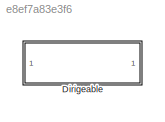
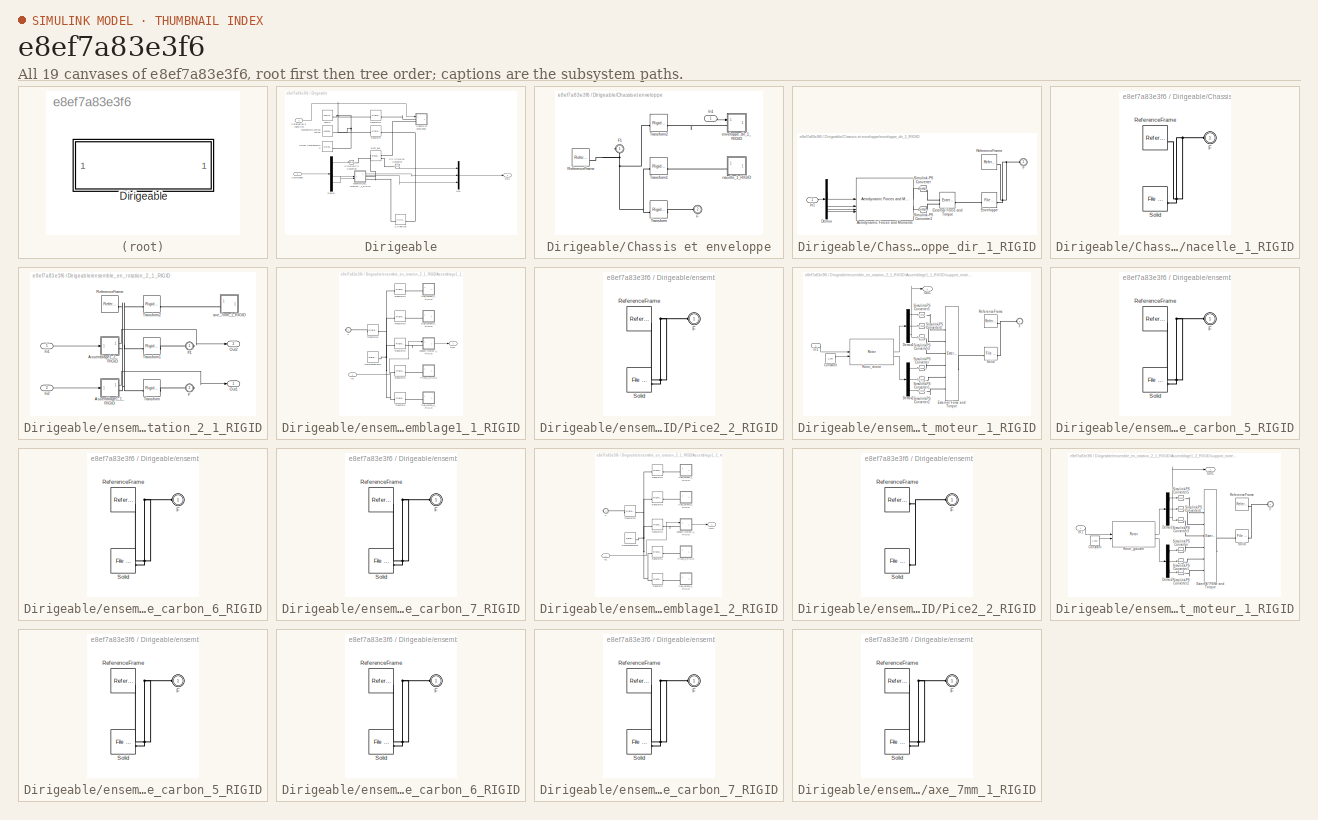
[diagram: thumbnail index - all 19 canvases of the model, root first then tree order]
MODEL slx_e8ef7a83e3f6
KIND model
CONFIG AbsTol = auto
CONFIG EnableMultiTasking = off
CONFIG FixedStep = auto
CONFIG MaxStep = auto
CONFIG MinStep = auto
CONFIG RelTol = 1e-3
CONFIG SampleTimeConstraint = Unconstrained
CONFIG SolverName = VariableStepAuto
CONFIG StartTime = 0.0
CONFIG StopTime = 10.0
WORKSPACE source: external: MATLAB File  (data not in archive)
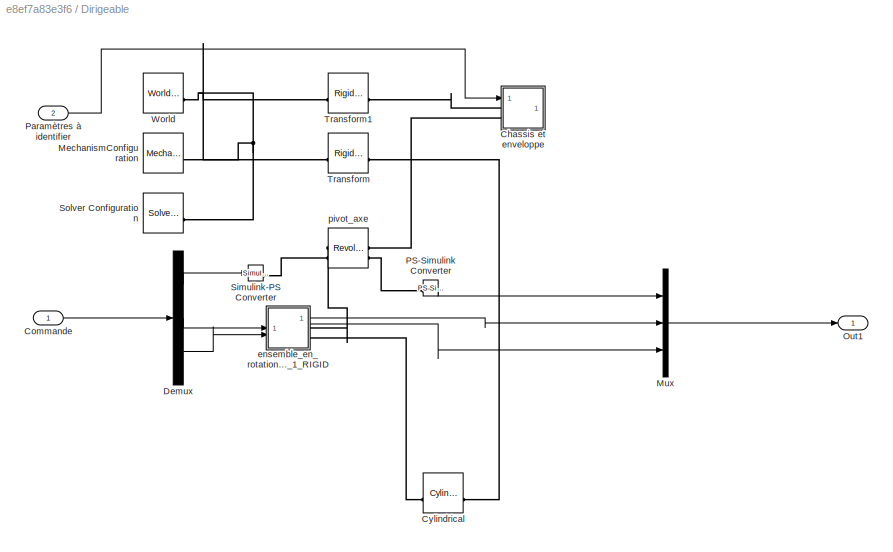
BLOCK [SubSystem] Dirigeable
BLOCK [SubSystem] Dirigeable/Chassis et enveloppe
BLOCK [PMIOPort] Dirigeable/Chassis et enveloppe/F
  Port = 2
  Side = Left
BLOCK [PMIOPort] Dirigeable/Chassis et enveloppe/F1
  Side = Left
BLOCK [Inport] Dirigeable/Chassis et enveloppe/In1
BLOCK [Reference] Dirigeable/Chassis et enveloppe/ReferenceFrame  REF=sm_lib/Frames and
Transforms/Reference
Frame
  SourceBlock = sm_lib/Frames and\nTransforms/Reference\nFrame
  SourceType = Reference\nFrame
BLOCK [Reference] Dirigeable/Chassis et enveloppe/Transform  REF=sm_lib/Frames and
Transforms/Rigid
Transform
  SourceBlock = sm_lib/Frames and\nTransforms/Rigid\nTransform
  SourceType = Rigid\nTransform
BLOCK [Reference] Dirigeable/Chassis et enveloppe/Transform1  REF=sm_lib/Frames and
Transforms/Rigid
Transform
  SourceBlock = sm_lib/Frames and\nTransforms/Rigid\nTransform
  SourceType = Rigid\nTransform
BLOCK [Reference] Dirigeable/Chassis et enveloppe/Transform2  REF=sm_lib/Frames and
Transforms/Rigid
Transform
  SourceBlock = sm_lib/Frames and\nTransforms/Rigid\nTransform
  SourceType = Rigid\nTransform
BLOCK [SubSystem] Dirigeable/Chassis et enveloppe/enveloppe_dir_1_RIGID
BLOCK [Reference] Dirigeable/Chassis et enveloppe/enveloppe_dir_1_RIGID/Aerodynamic Forces and Moments   REF=aerolibadyn/Aerodynamic
Forces and Moments 
  SourceBlock = aerolibadyn/Aerodynamic\nForces and Moments
  SourceType = Aerodynamic Forces and Moments
BLOCK [Demux] Dirigeable/Chassis et enveloppe/enveloppe_dir_1_RIGID/Demux
BLOCK [Reference] Dirigeable/Chassis et enveloppe/enveloppe_dir_1_RIGID/Enveloppe  REF=sm_lib/Body Elements/File Solid
  SourceBlock = sm_lib/Body Elements/File Solid
  SourceType = File Solid
BLOCK [Reference] Dirigeable/Chassis et enveloppe/enveloppe_dir_1_RIGID/External Force and Torque  REF=sm_lib/Forces and
Torques/External Force
and Torque
  SourceBlock = sm_lib/Forces and\nTorques/External Force\nand Torque
  SourceType = External Force\nand Torque
BLOCK [PMIOPort] Dirigeable/Chassis et enveloppe/enveloppe_dir_1_RIGID/F
  Side = Left
BLOCK [Inport] Dirigeable/Chassis et enveloppe/enveloppe_dir_1_RIGID/In1
BLOCK [Reference] Dirigeable/Chassis et enveloppe/enveloppe_dir_1_RIGID/ReferenceFrame  REF=sm_lib/Frames and
Transforms/Reference
Frame
  SourceBlock = sm_lib/Frames and\nTransforms/Reference\nFrame
  SourceType = Reference\nFrame
BLOCK [Reference] Dirigeable/Chassis et enveloppe/enveloppe_dir_1_RIGID/Simulink-PS Converter  REF=nesl_utility/Simulink-PS
Converter
  SourceBlock = nesl_utility/Simulink-PS\nConverter
  SourceType = Simulink-PS\nConverter
BLOCK [Reference] Dirigeable/Chassis et enveloppe/enveloppe_dir_1_RIGID/Simulink-PS Converter1  REF=nesl_utility/Simulink-PS
Converter
  SourceBlock = nesl_utility/Simulink-PS\nConverter
  SourceType = Simulink-PS\nConverter
BLOCK [SubSystem] Dirigeable/Chassis et enveloppe/nacelle_1_RIGID
BLOCK [PMIOPort] Dirigeable/Chassis et enveloppe/nacelle_1_RIGID/F
  Side = Left
BLOCK [Reference] Dirigeable/Chassis et enveloppe/nacelle_1_RIGID/ReferenceFrame  REF=sm_lib/Frames and
Transforms/Reference
Frame
  SourceBlock = sm_lib/Frames and\nTransforms/Reference\nFrame
  SourceType = Reference\nFrame
BLOCK [Reference] Dirigeable/Chassis et enveloppe/nacelle_1_RIGID/Solid  REF=sm_lib/Body Elements/File Solid
  SourceBlock = sm_lib/Body Elements/File Solid
  SourceType = File Solid
BLOCK [Inport] Dirigeable/Commande
BLOCK [Reference] Dirigeable/Cylindrical  REF=sm_lib/Joints/Cylindrical
Joint
  SourceBlock = sm_lib/Joints/Cylindrical\nJoint
  SourceType = Cylindrical\nJoint
BLOCK [Demux] Dirigeable/Demux
  Outputs = 3
BLOCK [Reference] Dirigeable/MechanismConfiguration  REF=sm_lib/Utilities/Mechanism
Configuration
  SourceBlock = sm_lib/Utilities/Mechanism\nConfiguration
  SourceType = Mechanism\nConfiguration
BLOCK [Mux] Dirigeable/Mux
  DisplayOption = bar
  Inputs = 3
BLOCK [Outport] Dirigeable/Out1
BLOCK [Reference] Dirigeable/PS-Simulink Converter  REF=nesl_utility/PS-Simulink
Converter
  SourceBlock = nesl_utility/PS-Simulink\nConverter
  SourceType = PS-Simulink\nConverter
BLOCK [Inport] Dirigeable/Paramètres à identifier
  Port = 2
BLOCK [Reference] Dirigeable/Simulink-PS Converter  REF=nesl_utility/Simulink-PS
Converter
  SourceBlock = nesl_utility/Simulink-PS\nConverter
  SourceType = Simulink-PS\nConverter
BLOCK [Reference] Dirigeable/Solver Configuration  REF=nesl_utility/Solver
Configuration
  SourceBlock = nesl_utility/Solver\nConfiguration
  SourceType = Solver\nConfiguration
BLOCK [Reference] Dirigeable/Transform  REF=sm_lib/Frames and
Transforms/Rigid
Transform
  SourceBlock = sm_lib/Frames and\nTransforms/Rigid\nTransform
  SourceType = Rigid\nTransform
BLOCK [Reference] Dirigeable/Transform1  REF=sm_lib/Frames and
Transforms/Rigid
Transform
  SourceBlock = sm_lib/Frames and\nTransforms/Rigid\nTransform
  SourceType = Rigid\nTransform
BLOCK [Reference] Dirigeable/World  REF=sm_lib/Frames and
Transforms/World Frame
  SourceBlock = sm_lib/Frames and\nTransforms/World Frame
  SourceType = World Frame
BLOCK [SubSystem] Dirigeable/ensemble_en_rotation_2_1_RIGID
BLOCK [SubSystem] Dirigeable/ensemble_en_rotation_2_1_RIGID/Assemblage1_1_RIGID
BLOCK [PMIOPort] Dirigeable/ensemble_en_rotation_2_1_RIGID/Assemblage1_1_RIGID/F
  Side = Right
BLOCK [Inport] Dirigeable/ensemble_en_rotation_2_1_RIGID/Assemblage1_1_RIGID/In1
BLOCK [Outport] Dirigeable/ensemble_en_rotation_2_1_RIGID/Assemblage1_1_RIGID/Out1
BLOCK [SubSystem] Dirigeable/ensemble_en_rotation_2_1_RIGID/Assemblage1_1_RIGID/Pice2_2_RIGID
BLOCK [PMIOPort] Dirigeable/ensemble_en_rotation_2_1_RIGID/Assemblage1_1_RIGID/Pice2_2_RIGID/F
  Side = Left
BLOCK [Reference] Dirigeable/ensemble_en_rotation_2_1_RIGID/Assemblage1_1_RIGID/Pice2_2_RIGID/ReferenceFrame  REF=sm_lib/Frames and
Transforms/Reference
Frame
  SourceBlock = sm_lib/Frames and\nTransforms/Reference\nFrame
  SourceType = Reference\nFrame
BLOCK [Reference] Dirigeable/ensemble_en_rotation_2_1_RIGID/Assemblage1_1_RIGID/Pice2_2_RIGID/Solid  REF=sm_lib/Body Elements/File Solid
  SourceBlock = sm_lib/Body Elements/File Solid
  SourceType = File Solid
BLOCK [Reference] Dirigeable/ensemble_en_rotation_2_1_RIGID/Assemblage1_1_RIGID/ReferenceFrame  REF=sm_lib/Frames and
Transforms/Reference
Frame
  SourceBlock = sm_lib/Frames and\nTransforms/Reference\nFrame
  SourceType = Reference\nFrame
BLOCK [Reference] Dirigeable/ensemble_en_rotation_2_1_RIGID/Assemblage1_1_RIGID/Transform  REF=sm_lib/Frames and
Transforms/Rigid
Transform
  SourceBlock = sm_lib/Frames and\nTransforms/Rigid\nTransform
  SourceType = Rigid\nTransform
BLOCK [Reference] Dirigeable/ensemble_en_rotation_2_1_RIGID/Assemblage1_1_RIGID/Transform1  REF=sm_lib/Frames and
Transforms/Rigid
Transform
  SourceBlock = sm_lib/Frames and\nTransforms/Rigid\nTransform
  SourceType = Rigid\nTransform
BLOCK [Reference] Dirigeable/ensemble_en_rotation_2_1_RIGID/Assemblage1_1_RIGID/Transform2  REF=sm_lib/Frames and
Transforms/Rigid
Transform
  SourceBlock = sm_lib/Frames and\nTransforms/Rigid\nTransform
  SourceType = Rigid\nTransform
BLOCK [Reference] Dirigeable/ensemble_en_rotation_2_1_RIGID/Assemblage1_1_RIGID/Transform3  REF=sm_lib/Frames and
Transforms/Rigid
Transform
  SourceBlock = sm_lib/Frames and\nTransforms/Rigid\nTransform
  SourceType = Rigid\nTransform
BLOCK [Reference] Dirigeable/ensemble_en_rotation_2_1_RIGID/Assemblage1_1_RIGID/Transform4  REF=sm_lib/Frames and
Transforms/Rigid
Transform
  SourceBlock = sm_lib/Frames and\nTransforms/Rigid\nTransform
  SourceType = Rigid\nTransform
BLOCK [Reference] Dirigeable/ensemble_en_rotation_2_1_RIGID/Assemblage1_1_RIGID/Transform5  REF=sm_lib/Frames and
Transforms/Rigid
Transform
  SourceBlock = sm_lib/Frames and\nTransforms/Rigid\nTransform
  SourceType = Rigid\nTransform
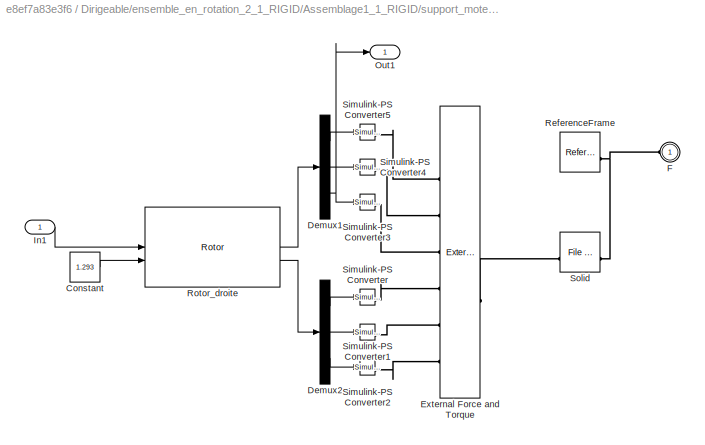
BLOCK [SubSystem] Dirigeable/ensemble_en_rotation_2_1_RIGID/Assemblage1_1_RIGID/support_moteur_1_RIGID
BLOCK [Constant] Dirigeable/ensemble_en_rotation_2_1_RIGID/Assemblage1_1_RIGID/support_moteur_1_RIGID/Constant
  Value = 1.293
BLOCK [Demux] Dirigeable/ensemble_en_rotation_2_1_RIGID/Assemblage1_1_RIGID/support_moteur_1_RIGID/Demux1
  Outputs = 3
BLOCK [Demux] Dirigeable/ensemble_en_rotation_2_1_RIGID/Assemblage1_1_RIGID/support_moteur_1_RIGID/Demux2
  Outputs = 3
BLOCK [Reference] Dirigeable/ensemble_en_rotation_2_1_RIGID/Assemblage1_1_RIGID/support_moteur_1_RIGID/External Force and Torque  REF=sm_lib/Forces and
Torques/External Force
and Torque
  SourceBlock = sm_lib/Forces and\nTorques/External Force\nand Torque
  SourceType = External Force\nand Torque
BLOCK [PMIOPort] Dirigeable/ensemble_en_rotation_2_1_RIGID/Assemblage1_1_RIGID/support_moteur_1_RIGID/F
  Side = Left
BLOCK [Inport] Dirigeable/ensemble_en_rotation_2_1_RIGID/Assemblage1_1_RIGID/support_moteur_1_RIGID/In1
BLOCK [Outport] Dirigeable/ensemble_en_rotation_2_1_RIGID/Assemblage1_1_RIGID/support_moteur_1_RIGID/Out1
BLOCK [Reference] Dirigeable/ensemble_en_rotation_2_1_RIGID/Assemblage1_1_RIGID/support_moteur_1_RIGID/ReferenceFrame  REF=sm_lib/Frames and
Transforms/Reference
Frame
  SourceBlock = sm_lib/Frames and\nTransforms/Reference\nFrame
  SourceType = Reference\nFrame
BLOCK [Reference] Dirigeable/ensemble_en_rotation_2_1_RIGID/Assemblage1_1_RIGID/support_moteur_1_RIGID/Rotor_droite  REF=aerolibpropulsion2/Rotor
  LibrarySourceBlock = aerolibrotor/Rotor
  SourceBlock = aerolibpropulsion2/Rotor
  SourceType = Rotor
BLOCK [Reference] Dirigeable/ensemble_en_rotation_2_1_RIGID/Assemblage1_1_RIGID/support_moteur_1_RIGID/Simulink-PS Converter  REF=nesl_utility/Simulink-PS
Converter
  SourceBlock = nesl_utility/Simulink-PS\nConverter
  SourceType = Simulink-PS\nConverter
BLOCK [Reference] Dirigeable/ensemble_en_rotation_2_1_RIGID/Assemblage1_1_RIGID/support_moteur_1_RIGID/Simulink-PS Converter1  REF=nesl_utility/Simulink-PS
Converter
  SourceBlock = nesl_utility/Simulink-PS\nConverter
  SourceType = Simulink-PS\nConverter
BLOCK [Reference] Dirigeable/ensemble_en_rotation_2_1_RIGID/Assemblage1_1_RIGID/support_moteur_1_RIGID/Simulink-PS Converter2  REF=nesl_utility/Simulink-PS
Converter
  SourceBlock = nesl_utility/Simulink-PS\nConverter
  SourceType = Simulink-PS\nConverter
BLOCK [Reference] Dirigeable/ensemble_en_rotation_2_1_RIGID/Assemblage1_1_RIGID/support_moteur_1_RIGID/Simulink-PS Converter3  REF=nesl_utility/Simulink-PS
Converter
  SourceBlock = nesl_utility/Simulink-PS\nConverter
  SourceType = Simulink-PS\nConverter
BLOCK [Reference] Dirigeable/ensemble_en_rotation_2_1_RIGID/Assemblage1_1_RIGID/support_moteur_1_RIGID/Simulink-PS Converter4  REF=nesl_utility/Simulink-PS
Converter
  SourceBlock = nesl_utility/Simulink-PS\nConverter
  SourceType = Simulink-PS\nConverter
BLOCK [Reference] Dirigeable/ensemble_en_rotation_2_1_RIGID/Assemblage1_1_RIGID/support_moteur_1_RIGID/Simulink-PS Converter5  REF=nesl_utility/Simulink-PS
Converter
  SourceBlock = nesl_utility/Simulink-PS\nConverter
  SourceType = Simulink-PS\nConverter
BLOCK [Reference] Dirigeable/ensemble_en_rotation_2_1_RIGID/Assemblage1_1_RIGID/support_moteur_1_RIGID/Solid  REF=sm_lib/Body Elements/File Solid
  SourceBlock = sm_lib/Body Elements/File Solid
  SourceType = File Solid
BLOCK [SubSystem] Dirigeable/ensemble_en_rotation_2_1_RIGID/Assemblage1_1_RIGID/tige_carbon_5_RIGID
BLOCK [PMIOPort] Dirigeable/ensemble_en_rotation_2_1_RIGID/Assemblage1_1_RIGID/tige_carbon_5_RIGID/F
  Side = Left
BLOCK [Reference] Dirigeable/ensemble_en_rotation_2_1_RIGID/Assemblage1_1_RIGID/tige_carbon_5_RIGID/ReferenceFrame  REF=sm_lib/Frames and
Transforms/Reference
Frame
  SourceBlock = sm_lib/Frames and\nTransforms/Reference\nFrame
  SourceType = Reference\nFrame
BLOCK [Reference] Dirigeable/ensemble_en_rotation_2_1_RIGID/Assemblage1_1_RIGID/tige_carbon_5_RIGID/Solid  REF=sm_lib/Body Elements/File Solid
  SourceBlock = sm_lib/Body Elements/File Solid
  SourceType = File Solid
BLOCK [SubSystem] Dirigeable/ensemble_en_rotation_2_1_RIGID/Assemblage1_1_RIGID/tige_carbon_6_RIGID
BLOCK [PMIOPort] Dirigeable/ensemble_en_rotation_2_1_RIGID/Assemblage1_1_RIGID/tige_carbon_6_RIGID/F
  Side = Left
BLOCK [Reference] Dirigeable/ensemble_en_rotation_2_1_RIGID/Assemblage1_1_RIGID/tige_carbon_6_RIGID/ReferenceFrame  REF=sm_lib/Frames and
Transforms/Reference
Frame
  SourceBlock = sm_lib/Frames and\nTransforms/Reference\nFrame
  SourceType = Reference\nFrame
BLOCK [Reference] Dirigeable/ensemble_en_rotation_2_1_RIGID/Assemblage1_1_RIGID/tige_carbon_6_RIGID/Solid  REF=sm_lib/Body Elements/File Solid
  SourceBlock = sm_lib/Body Elements/File Solid
  SourceType = File Solid
BLOCK [SubSystem] Dirigeable/ensemble_en_rotation_2_1_RIGID/Assemblage1_1_RIGID/tige_carbon_7_RIGID
BLOCK [PMIOPort] Dirigeable/ensemble_en_rotation_2_1_RIGID/Assemblage1_1_RIGID/tige_carbon_7_RIGID/F
  Side = Left
BLOCK [Reference] Dirigeable/ensemble_en_rotation_2_1_RIGID/Assemblage1_1_RIGID/tige_carbon_7_RIGID/ReferenceFrame  REF=sm_lib/Frames and
Transforms/Reference
Frame
  SourceBlock = sm_lib/Frames and\nTransforms/Reference\nFrame
  SourceType = Reference\nFrame
BLOCK [Reference] Dirigeable/ensemble_en_rotation_2_1_RIGID/Assemblage1_1_RIGID/tige_carbon_7_RIGID/Solid  REF=sm_lib/Body Elements/File Solid
  SourceBlock = sm_lib/Body Elements/File Solid
  SourceType = File Solid
BLOCK [SubSystem] Dirigeable/ensemble_en_rotation_2_1_RIGID/Assemblage1_2_RIGID
BLOCK [PMIOPort] Dirigeable/ensemble_en_rotation_2_1_RIGID/Assemblage1_2_RIGID/F
  Side = Right
BLOCK [Inport] Dirigeable/ensemble_en_rotation_2_1_RIGID/Assemblage1_2_RIGID/In1
BLOCK [Outport] Dirigeable/ensemble_en_rotation_2_1_RIGID/Assemblage1_2_RIGID/Out1
BLOCK [SubSystem] Dirigeable/ensemble_en_rotation_2_1_RIGID/Assemblage1_2_RIGID/Pice2_2_RIGID
BLOCK [PMIOPort] Dirigeable/ensemble_en_rotation_2_1_RIGID/Assemblage1_2_RIGID/Pice2_2_RIGID/F
  Side = Left
BLOCK [Reference] Dirigeable/ensemble_en_rotation_2_1_RIGID/Assemblage1_2_RIGID/Pice2_2_RIGID/ReferenceFrame  REF=sm_lib/Frames and
Transforms/Reference
Frame
  SourceBlock = sm_lib/Frames and\nTransforms/Reference\nFrame
  SourceType = Reference\nFrame
BLOCK [Reference] Dirigeable/ensemble_en_rotation_2_1_RIGID/Assemblage1_2_RIGID/Pice2_2_RIGID/Solid  REF=sm_lib/Body Elements/File Solid
  SourceBlock = sm_lib/Body Elements/File Solid
  SourceType = File Solid
BLOCK [Reference] Dirigeable/ensemble_en_rotation_2_1_RIGID/Assemblage1_2_RIGID/ReferenceFrame  REF=sm_lib/Frames and
Transforms/Reference
Frame
  SourceBlock = sm_lib/Frames and\nTransforms/Reference\nFrame
  SourceType = Reference\nFrame
BLOCK [Reference] Dirigeable/ensemble_en_rotation_2_1_RIGID/Assemblage1_2_RIGID/Transform  REF=sm_lib/Frames and
Transforms/Rigid
Transform
  SourceBlock = sm_lib/Frames and\nTransforms/Rigid\nTransform
  SourceType = Rigid\nTransform
BLOCK [Reference] Dirigeable/ensemble_en_rotation_2_1_RIGID/Assemblage1_2_RIGID/Transform1  REF=sm_lib/Frames and
Transforms/Rigid
Transform
  SourceBlock = sm_lib/Frames and\nTransforms/Rigid\nTransform
  SourceType = Rigid\nTransform
BLOCK [Reference] Dirigeable/ensemble_en_rotation_2_1_RIGID/Assemblage1_2_RIGID/Transform2  REF=sm_lib/Frames and
Transforms/Rigid
Transform
  SourceBlock = sm_lib/Frames and\nTransforms/Rigid\nTransform
  SourceType = Rigid\nTransform
BLOCK [Reference] Dirigeable/ensemble_en_rotation_2_1_RIGID/Assemblage1_2_RIGID/Transform3  REF=sm_lib/Frames and
Transforms/Rigid
Transform
  SourceBlock = sm_lib/Frames and\nTransforms/Rigid\nTransform
  SourceType = Rigid\nTransform
BLOCK [Reference] Dirigeable/ensemble_en_rotation_2_1_RIGID/Assemblage1_2_RIGID/Transform4  REF=sm_lib/Frames and
Transforms/Rigid
Transform
  SourceBlock = sm_lib/Frames and\nTransforms/Rigid\nTransform
  SourceType = Rigid\nTransform
BLOCK [Reference] Dirigeable/ensemble_en_rotation_2_1_RIGID/Assemblage1_2_RIGID/Transform5  REF=sm_lib/Frames and
Transforms/Rigid
Transform
  SourceBlock = sm_lib/Frames and\nTransforms/Rigid\nTransform
  SourceType = Rigid\nTransform
BLOCK [SubSystem] Dirigeable/ensemble_en_rotation_2_1_RIGID/Assemblage1_2_RIGID/support_moteur_1_RIGID
BLOCK [Constant] Dirigeable/ensemble_en_rotation_2_1_RIGID/Assemblage1_2_RIGID/support_moteur_1_RIGID/Constant
  Value = 1.293
BLOCK [Demux] Dirigeable/ensemble_en_rotation_2_1_RIGID/Assemblage1_2_RIGID/support_moteur_1_RIGID/Demux1
  Outputs = 3
BLOCK [Demux] Dirigeable/ensemble_en_rotation_2_1_RIGID/Assemblage1_2_RIGID/support_moteur_1_RIGID/Demux2
  Outputs = 3
BLOCK [Reference] Dirigeable/ensemble_en_rotation_2_1_RIGID/Assemblage1_2_RIGID/support_moteur_1_RIGID/External Force and Torque  REF=sm_lib/Forces and
Torques/External Force
and Torque
  SourceBlock = sm_lib/Forces and\nTorques/External Force\nand Torque
  SourceType = External Force\nand Torque
BLOCK [PMIOPort] Dirigeable/ensemble_en_rotation_2_1_RIGID/Assemblage1_2_RIGID/support_moteur_1_RIGID/F
  Side = Left
BLOCK [Inport] Dirigeable/ensemble_en_rotation_2_1_RIGID/Assemblage1_2_RIGID/support_moteur_1_RIGID/In1
BLOCK [Outport] Dirigeable/ensemble_en_rotation_2_1_RIGID/Assemblage1_2_RIGID/support_moteur_1_RIGID/Out1
BLOCK [Reference] Dirigeable/ensemble_en_rotation_2_1_RIGID/Assemblage1_2_RIGID/support_moteur_1_RIGID/ReferenceFrame  REF=sm_lib/Frames and
Transforms/Reference
Frame
  SourceBlock = sm_lib/Frames and\nTransforms/Reference\nFrame
  SourceType = Reference\nFrame
BLOCK [Reference] Dirigeable/ensemble_en_rotation_2_1_RIGID/Assemblage1_2_RIGID/support_moteur_1_RIGID/Rotor_gauche  REF=aerolibpropulsion2/Rotor
  LibrarySourceBlock = aerolibrotor/Rotor
  SourceBlock = aerolibpropulsion2/Rotor
  SourceType = Rotor
BLOCK [Reference] Dirigeable/ensemble_en_rotation_2_1_RIGID/Assemblage1_2_RIGID/support_moteur_1_RIGID/Simulink-PS Converter  REF=nesl_utility/Simulink-PS
Converter
  SourceBlock = nesl_utility/Simulink-PS\nConverter
  SourceType = Simulink-PS\nConverter
BLOCK [Reference] Dirigeable/ensemble_en_rotation_2_1_RIGID/Assemblage1_2_RIGID/support_moteur_1_RIGID/Simulink-PS Converter1  REF=nesl_utility/Simulink-PS
Converter
  SourceBlock = nesl_utility/Simulink-PS\nConverter
  SourceType = Simulink-PS\nConverter
BLOCK [Reference] Dirigeable/ensemble_en_rotation_2_1_RIGID/Assemblage1_2_RIGID/support_moteur_1_RIGID/Simulink-PS Converter2  REF=nesl_utility/Simulink-PS
Converter
  SourceBlock = nesl_utility/Simulink-PS\nConverter
  SourceType = Simulink-PS\nConverter
BLOCK [Reference] Dirigeable/ensemble_en_rotation_2_1_RIGID/Assemblage1_2_RIGID/support_moteur_1_RIGID/Simulink-PS Converter3  REF=nesl_utility/Simulink-PS
Converter
  SourceBlock = nesl_utility/Simulink-PS\nConverter
  SourceType = Simulink-PS\nConverter
BLOCK [Reference] Dirigeable/ensemble_en_rotation_2_1_RIGID/Assemblage1_2_RIGID/support_moteur_1_RIGID/Simulink-PS Converter4  REF=nesl_utility/Simulink-PS
Converter
  SourceBlock = nesl_utility/Simulink-PS\nConverter
  SourceType = Simulink-PS\nConverter
BLOCK [Reference] Dirigeable/ensemble_en_rotation_2_1_RIGID/Assemblage1_2_RIGID/support_moteur_1_RIGID/Simulink-PS Converter5  REF=nesl_utility/Simulink-PS
Converter
  SourceBlock = nesl_utility/Simulink-PS\nConverter
  SourceType = Simulink-PS\nConverter
BLOCK [Reference] Dirigeable/ensemble_en_rotation_2_1_RIGID/Assemblage1_2_RIGID/support_moteur_1_RIGID/Solid  REF=sm_lib/Body Elements/File Solid
  SourceBlock = sm_lib/Body Elements/File Solid
  SourceType = File Solid
BLOCK [SubSystem] Dirigeable/ensemble_en_rotation_2_1_RIGID/Assemblage1_2_RIGID/tige_carbon_5_RIGID
BLOCK [PMIOPort] Dirigeable/ensemble_en_rotation_2_1_RIGID/Assemblage1_2_RIGID/tige_carbon_5_RIGID/F
  Side = Left
BLOCK [Reference] Dirigeable/ensemble_en_rotation_2_1_RIGID/Assemblage1_2_RIGID/tige_carbon_5_RIGID/ReferenceFrame  REF=sm_lib/Frames and
Transforms/Reference
Frame
  SourceBlock = sm_lib/Frames and\nTransforms/Reference\nFrame
  SourceType = Reference\nFrame
BLOCK [Reference] Dirigeable/ensemble_en_rotation_2_1_RIGID/Assemblage1_2_RIGID/tige_carbon_5_RIGID/Solid  REF=sm_lib/Body Elements/File Solid
  SourceBlock = sm_lib/Body Elements/File Solid
  SourceType = File Solid
BLOCK [SubSystem] Dirigeable/ensemble_en_rotation_2_1_RIGID/Assemblage1_2_RIGID/tige_carbon_6_RIGID
BLOCK [PMIOPort] Dirigeable/ensemble_en_rotation_2_1_RIGID/Assemblage1_2_RIGID/tige_carbon_6_RIGID/F
  Side = Left
BLOCK [Reference] Dirigeable/ensemble_en_rotation_2_1_RIGID/Assemblage1_2_RIGID/tige_carbon_6_RIGID/ReferenceFrame  REF=sm_lib/Frames and
Transforms/Reference
Frame
  SourceBlock = sm_lib/Frames and\nTransforms/Reference\nFrame
  SourceType = Reference\nFrame
BLOCK [Reference] Dirigeable/ensemble_en_rotation_2_1_RIGID/Assemblage1_2_RIGID/tige_carbon_6_RIGID/Solid  REF=sm_lib/Body Elements/File Solid
  SourceBlock = sm_lib/Body Elements/File Solid
  SourceType = File Solid
BLOCK [SubSystem] Dirigeable/ensemble_en_rotation_2_1_RIGID/Assemblage1_2_RIGID/tige_carbon_7_RIGID
BLOCK [PMIOPort] Dirigeable/ensemble_en_rotation_2_1_RIGID/Assemblage1_2_RIGID/tige_carbon_7_RIGID/F
  Side = Left
BLOCK [Reference] Dirigeable/ensemble_en_rotation_2_1_RIGID/Assemblage1_2_RIGID/tige_carbon_7_RIGID/ReferenceFrame  REF=sm_lib/Frames and
Transforms/Reference
Frame
  SourceBlock = sm_lib/Frames and\nTransforms/Reference\nFrame
  SourceType = Reference\nFrame
BLOCK [Reference] Dirigeable/ensemble_en_rotation_2_1_RIGID/Assemblage1_2_RIGID/tige_carbon_7_RIGID/Solid  REF=sm_lib/Body Elements/File Solid
  SourceBlock = sm_lib/Body Elements/File Solid
  SourceType = File Solid
BLOCK [PMIOPort] Dirigeable/ensemble_en_rotation_2_1_RIGID/F
  Port = 2
  Side = Right
BLOCK [PMIOPort] Dirigeable/ensemble_en_rotation_2_1_RIGID/F1
  Side = Right
BLOCK [Inport] Dirigeable/ensemble_en_rotation_2_1_RIGID/In1
BLOCK [Inport] Dirigeable/ensemble_en_rotation_2_1_RIGID/In2
  Port = 2
BLOCK [Outport] Dirigeable/ensemble_en_rotation_2_1_RIGID/Out1
BLOCK [Outport] Dirigeable/ensemble_en_rotation_2_1_RIGID/Out2
  Port = 2
BLOCK [Reference] Dirigeable/ensemble_en_rotation_2_1_RIGID/ReferenceFrame  REF=sm_lib/Frames and
Transforms/Reference
Frame
  SourceBlock = sm_lib/Frames and\nTransforms/Reference\nFrame
  SourceType = Reference\nFrame
BLOCK [Reference] Dirigeable/ensemble_en_rotation_2_1_RIGID/Transform  REF=sm_lib/Frames and
Transforms/Rigid
Transform
  SourceBlock = sm_lib/Frames and\nTransforms/Rigid\nTransform
  SourceType = Rigid\nTransform
BLOCK [Reference] Dirigeable/ensemble_en_rotation_2_1_RIGID/Transform1  REF=sm_lib/Frames and
Transforms/Rigid
Transform
  SourceBlock = sm_lib/Frames and\nTransforms/Rigid\nTransform
  SourceType = Rigid\nTransform
BLOCK [Reference] Dirigeable/ensemble_en_rotation_2_1_RIGID/Transform2  REF=sm_lib/Frames and
Transforms/Rigid
Transform
  SourceBlock = sm_lib/Frames and\nTransforms/Rigid\nTransform
  SourceType = Rigid\nTransform
BLOCK [SubSystem] Dirigeable/ensemble_en_rotation_2_1_RIGID/axe_7mm_1_RIGID
BLOCK [PMIOPort] Dirigeable/ensemble_en_rotation_2_1_RIGID/axe_7mm_1_RIGID/F
  Side = Left
BLOCK [Reference] Dirigeable/ensemble_en_rotation_2_1_RIGID/axe_7mm_1_RIGID/ReferenceFrame  REF=sm_lib/Frames and
Transforms/Reference
Frame
  SourceBlock = sm_lib/Frames and\nTransforms/Reference\nFrame
  SourceType = Reference\nFrame
BLOCK [Reference] Dirigeable/ensemble_en_rotation_2_1_RIGID/axe_7mm_1_RIGID/Solid  REF=sm_lib/Body Elements/File Solid
  SourceBlock = sm_lib/Body Elements/File Solid
  SourceType = File Solid
BLOCK [Reference] Dirigeable/pivot_axe  REF=sm_lib/Joints/Revolute Joint
  SourceBlock = sm_lib/Joints/Revolute Joint
  SourceType = Revolute Joint
LINE Dirigeable/Chassis et enveloppe/In1:1 -> Dirigeable/Chassis et enveloppe/enveloppe_dir_1_RIGID:1
LINE Dirigeable/Chassis et enveloppe/enveloppe_dir_1_RIGID/Aerodynamic Forces and Moments :1 -> Dirigeable/Chassis et enveloppe/enveloppe_dir_1_RIGID/Simulink-PS Converter:1
LINE Dirigeable/Chassis et enveloppe/enveloppe_dir_1_RIGID/Aerodynamic Forces and Moments :2 -> Dirigeable/Chassis et enveloppe/enveloppe_dir_1_RIGID/Simulink-PS Converter1:1
LINE Dirigeable/Chassis et enveloppe/enveloppe_dir_1_RIGID/Demux:1 -> Dirigeable/Chassis et enveloppe/enveloppe_dir_1_RIGID/Aerodynamic Forces and Moments :1
LINE Dirigeable/Chassis et enveloppe/enveloppe_dir_1_RIGID/Demux:2 -> Dirigeable/Chassis et enveloppe/enveloppe_dir_1_RIGID/Aerodynamic Forces and Moments :2
LINE Dirigeable/Chassis et enveloppe/enveloppe_dir_1_RIGID/Demux:3 -> Dirigeable/Chassis et enveloppe/enveloppe_dir_1_RIGID/Aerodynamic Forces and Moments :3
LINE Dirigeable/Chassis et enveloppe/enveloppe_dir_1_RIGID/Demux:4 -> Dirigeable/Chassis et enveloppe/enveloppe_dir_1_RIGID/Aerodynamic Forces and Moments :4
LINE Dirigeable/Chassis et enveloppe/enveloppe_dir_1_RIGID/In1:1 -> Dirigeable/Chassis et enveloppe/enveloppe_dir_1_RIGID/Demux:1
LINE Dirigeable/Commande:1 -> Dirigeable/Demux:1
LINE Dirigeable/Demux:1 -> Dirigeable/Simulink-PS Converter:1
LINE Dirigeable/Demux:2 -> Dirigeable/ensemble_en_rotation_2_1_RIGID:1
LINE Dirigeable/Demux:3 -> Dirigeable/ensemble_en_rotation_2_1_RIGID:2
LINE Dirigeable/Mux:1 -> Dirigeable/Out1:1
LINE Dirigeable/PS-Simulink Converter:1 -> Dirigeable/Mux:1
LINE Dirigeable/Paramètres à identifier:1 -> Dirigeable/Chassis et enveloppe:1
LINE Dirigeable/ensemble_en_rotation_2_1_RIGID/Assemblage1_1_RIGID/In1:1 -> Dirigeable/ensemble_en_rotation_2_1_RIGID/Assemblage1_1_RIGID/support_moteur_1_RIGID:1
LINE Dirigeable/ensemble_en_rotation_2_1_RIGID/Assemblage1_1_RIGID/support_moteur_1_RIGID/Constant:1 -> Dirigeable/ensemble_en_rotation_2_1_RIGID/Assemblage1_1_RIGID/support_moteur_1_RIGID/Rotor_droite:2
LINE Dirigeable/ensemble_en_rotation_2_1_RIGID/Assemblage1_1_RIGID/support_moteur_1_RIGID/Demux1:1 -> Dirigeable/ensemble_en_rotation_2_1_RIGID/Assemblage1_1_RIGID/support_moteur_1_RIGID/Simulink-PS Converter5:1
LINE Dirigeable/ensemble_en_rotation_2_1_RIGID/Assemblage1_1_RIGID/support_moteur_1_RIGID/Demux1:2 -> Dirigeable/ensemble_en_rotation_2_1_RIGID/Assemblage1_1_RIGID/support_moteur_1_RIGID/Simulink-PS Converter4:1
NET Dirigeable/ensemble_en_rotation_2_1_RIGID/Assemblage1_1_RIGID/support_moteur_1_RIGID/Demux1:3 -> Dirigeable/ensemble_en_rotation_2_1_RIGID/Assemblage1_1_RIGID/support_moteur_1_RIGID/Out1:1, Dirigeable/ensemble_en_rotation_2_1_RIGID/Assemblage1_1_RIGID/support_moteur_1_RIGID/Simulink-PS Converter3:1
LINE Dirigeable/ensemble_en_rotation_2_1_RIGID/Assemblage1_1_RIGID/support_moteur_1_RIGID/Demux2:1 -> Dirigeable/ensemble_en_rotation_2_1_RIGID/Assemblage1_1_RIGID/support_moteur_1_RIGID/Simulink-PS Converter:1
LINE Dirigeable/ensemble_en_rotation_2_1_RIGID/Assemblage1_1_RIGID/support_moteur_1_RIGID/Demux2:2 -> Dirigeable/ensemble_en_rotation_2_1_RIGID/Assemblage1_1_RIGID/support_moteur_1_RIGID/Simulink-PS Converter1:1
LINE Dirigeable/ensemble_en_rotation_2_1_RIGID/Assemblage1_1_RIGID/support_moteur_1_RIGID/Demux2:3 -> Dirigeable/ensemble_en_rotation_2_1_RIGID/Assemblage1_1_RIGID/support_moteur_1_RIGID/Simulink-PS Converter2:1
LINE Dirigeable/ensemble_en_rotation_2_1_RIGID/Assemblage1_1_RIGID/support_moteur_1_RIGID/In1:1 -> Dirigeable/ensemble_en_rotation_2_1_RIGID/Assemblage1_1_RIGID/support_moteur_1_RIGID/Rotor_droite:1
LINE Dirigeable/ensemble_en_rotation_2_1_RIGID/Assemblage1_1_RIGID/support_moteur_1_RIGID/Rotor_droite:1 -> Dirigeable/ensemble_en_rotation_2_1_RIGID/Assemblage1_1_RIGID/support_moteur_1_RIGID/Demux1:1
LINE Dirigeable/ensemble_en_rotation_2_1_RIGID/Assemblage1_1_RIGID/support_moteur_1_RIGID/Rotor_droite:2 -> Dirigeable/ensemble_en_rotation_2_1_RIGID/Assemblage1_1_RIGID/support_moteur_1_RIGID/Demux2:1
LINE Dirigeable/ensemble_en_rotation_2_1_RIGID/Assemblage1_1_RIGID/support_moteur_1_RIGID:1 -> Dirigeable/ensemble_en_rotation_2_1_RIGID/Assemblage1_1_RIGID/Out1:1
LINE Dirigeable/ensemble_en_rotation_2_1_RIGID/Assemblage1_1_RIGID:1 -> Dirigeable/ensemble_en_rotation_2_1_RIGID/Out1:1
LINE Dirigeable/ensemble_en_rotation_2_1_RIGID/Assemblage1_2_RIGID/In1:1 -> Dirigeable/ensemble_en_rotation_2_1_RIGID/Assemblage1_2_RIGID/support_moteur_1_RIGID:1
LINE Dirigeable/ensemble_en_rotation_2_1_RIGID/Assemblage1_2_RIGID/support_moteur_1_RIGID/Constant:1 -> Dirigeable/ensemble_en_rotation_2_1_RIGID/Assemblage1_2_RIGID/support_moteur_1_RIGID/Rotor_gauche:2
LINE Dirigeable/ensemble_en_rotation_2_1_RIGID/Assemblage1_2_RIGID/support_moteur_1_RIGID/Demux1:1 -> Dirigeable/ensemble_en_rotation_2_1_RIGID/Assemblage1_2_RIGID/support_moteur_1_RIGID/Simulink-PS Converter5:1
LINE Dirigeable/ensemble_en_rotation_2_1_RIGID/Assemblage1_2_RIGID/support_moteur_1_RIGID/Demux1:2 -> Dirigeable/ensemble_en_rotation_2_1_RIGID/Assemblage1_2_RIGID/support_moteur_1_RIGID/Simulink-PS Converter4:1
NET Dirigeable/ensemble_en_rotation_2_1_RIGID/Assemblage1_2_RIGID/support_moteur_1_RIGID/Demux1:3 -> Dirigeable/ensemble_en_rotation_2_1_RIGID/Assemblage1_2_RIGID/support_moteur_1_RIGID/Out1:1, Dirigeable/ensemble_en_rotation_2_1_RIGID/Assemblage1_2_RIGID/support_moteur_1_RIGID/Simulink-PS Converter3:1
LINE Dirigeable/ensemble_en_rotation_2_1_RIGID/Assemblage1_2_RIGID/support_moteur_1_RIGID/Demux2:1 -> Dirigeable/ensemble_en_rotation_2_1_RIGID/Assemblage1_2_RIGID/support_moteur_1_RIGID/Simulink-PS Converter:1
LINE Dirigeable/ensemble_en_rotation_2_1_RIGID/Assemblage1_2_RIGID/support_moteur_1_RIGID/Demux2:2 -> Dirigeable/ensemble_en_rotation_2_1_RIGID/Assemblage1_2_RIGID/support_moteur_1_RIGID/Simulink-PS Converter1:1
LINE Dirigeable/ensemble_en_rotation_2_1_RIGID/Assemblage1_2_RIGID/support_moteur_1_RIGID/Demux2:3 -> Dirigeable/ensemble_en_rotation_2_1_RIGID/Assemblage1_2_RIGID/support_moteur_1_RIGID/Simulink-PS Converter2:1
LINE Dirigeable/ensemble_en_rotation_2_1_RIGID/Assemblage1_2_RIGID/support_moteur_1_RIGID/In1:1 -> Dirigeable/ensemble_en_rotation_2_1_RIGID/Assemblage1_2_RIGID/support_moteur_1_RIGID/Rotor_gauche:1
LINE Dirigeable/ensemble_en_rotation_2_1_RIGID/Assemblage1_2_RIGID/support_moteur_1_RIGID/Rotor_gauche:1 -> Dirigeable/ensemble_en_rotation_2_1_RIGID/Assemblage1_2_RIGID/support_moteur_1_RIGID/Demux1:1
LINE Dirigeable/ensemble_en_rotation_2_1_RIGID/Assemblage1_2_RIGID/support_moteur_1_RIGID/Rotor_gauche:2 -> Dirigeable/ensemble_en_rotation_2_1_RIGID/Assemblage1_2_RIGID/support_moteur_1_RIGID/Demux2:1
LINE Dirigeable/ensemble_en_rotation_2_1_RIGID/Assemblage1_2_RIGID/support_moteur_1_RIGID:1 -> Dirigeable/ensemble_en_rotation_2_1_RIGID/Assemblage1_2_RIGID/Out1:1
LINE Dirigeable/ensemble_en_rotation_2_1_RIGID/Assemblage1_2_RIGID:1 -> Dirigeable/ensemble_en_rotation_2_1_RIGID/Out2:1
LINE Dirigeable/ensemble_en_rotation_2_1_RIGID/In1:1 -> Dirigeable/ensemble_en_rotation_2_1_RIGID/Assemblage1_2_RIGID:1
LINE Dirigeable/ensemble_en_rotation_2_1_RIGID/In2:1 -> Dirigeable/ensemble_en_rotation_2_1_RIGID/Assemblage1_1_RIGID:1
LINE Dirigeable/ensemble_en_rotation_2_1_RIGID:1 -> Dirigeable/Mux:2
LINE Dirigeable/ensemble_en_rotation_2_1_RIGID:2 -> Dirigeable/Mux:3
PNET net1: Dirigeable/Chassis et enveloppe/F1:RConn1 -- Dirigeable/Chassis et enveloppe/ReferenceFrame:RConn1 -- Dirigeable/Chassis et enveloppe/Transform1:LConn1 -- Dirigeable/Chassis et enveloppe/Transform2:LConn1 -- Dirigeable/Chassis et enveloppe/Transform:LConn1
PLINE Dirigeable/Chassis et enveloppe/F:RConn1 -- Dirigeable/Chassis et enveloppe/Transform:RConn1
PLINE Dirigeable/Chassis et enveloppe/Transform1:RConn1 -- Dirigeable/Chassis et enveloppe/nacelle_1_RIGID:LConn1
PLINE Dirigeable/Chassis et enveloppe/Transform2:RConn1 -- Dirigeable/Chassis et enveloppe/enveloppe_dir_1_RIGID:LConn1
PLINE Dirigeable/Chassis et enveloppe/enveloppe_dir_1_RIGID/Enveloppe:LConn1 -- Dirigeable/Chassis et enveloppe/enveloppe_dir_1_RIGID/External Force and Torque:RConn1
PNET net2: Dirigeable/Chassis et enveloppe/enveloppe_dir_1_RIGID/Enveloppe:RConn1 -- Dirigeable/Chassis et enveloppe/enveloppe_dir_1_RIGID/F:RConn1 -- Dirigeable/Chassis et enveloppe/enveloppe_dir_1_RIGID/ReferenceFrame:RConn1
PLINE Dirigeable/Chassis et enveloppe/enveloppe_dir_1_RIGID/External Force and Torque:LConn1 -- Dirigeable/Chassis et enveloppe/enveloppe_dir_1_RIGID/Simulink-PS Converter:RConn1
PLINE Dirigeable/Chassis et enveloppe/enveloppe_dir_1_RIGID/External Force and Torque:LConn2 -- Dirigeable/Chassis et enveloppe/enveloppe_dir_1_RIGID/Simulink-PS Converter1:RConn1
PNET net3: Dirigeable/Chassis et enveloppe/nacelle_1_RIGID/F:RConn1 -- Dirigeable/Chassis et enveloppe/nacelle_1_RIGID/ReferenceFrame:RConn1 -- Dirigeable/Chassis et enveloppe/nacelle_1_RIGID/Solid:RConn1
PLINE Dirigeable/Chassis et enveloppe:LConn1 -- Dirigeable/Transform1:RConn1
PLINE Dirigeable/Chassis et enveloppe:LConn2 -- Dirigeable/pivot_axe:RConn1
PLINE Dirigeable/Cylindrical:LConn1 -- Dirigeable/ensemble_en_rotation_2_1_RIGID:RConn2
PLINE Dirigeable/Cylindrical:RConn1 -- Dirigeable/Transform:RConn1
PNET net4: Dirigeable/MechanismConfiguration:RConn1 -- Dirigeable/Solver Configuration:RConn1 -- Dirigeable/Transform1:LConn1 -- Dirigeable/Transform:LConn1 -- Dirigeable/World:RConn1
PLINE Dirigeable/PS-Simulink Converter:LConn1 -- Dirigeable/pivot_axe:RConn2
PLINE Dirigeable/Simulink-PS Converter:RConn1 -- Dirigeable/pivot_axe:LConn2
PLINE Dirigeable/ensemble_en_rotation_2_1_RIGID/Assemblage1_1_RIGID/F:RConn1 -- Dirigeable/ensemble_en_rotation_2_1_RIGID/Assemblage1_1_RIGID/Transform5:LConn1
PNET net5: Dirigeable/ensemble_en_rotation_2_1_RIGID/Assemblage1_1_RIGID/Pice2_2_RIGID/F:RConn1 -- Dirigeable/ensemble_en_rotation_2_1_RIGID/Assemblage1_1_RIGID/Pice2_2_RIGID/ReferenceFrame:RConn1 -- Dirigeable/ensemble_en_rotation_2_1_RIGID/Assemblage1_1_RIGID/Pice2_2_RIGID/Solid:RConn1
PLINE Dirigeable/ensemble_en_rotation_2_1_RIGID/Assemblage1_1_RIGID/Pice2_2_RIGID:LConn1 -- Dirigeable/ensemble_en_rotation_2_1_RIGID/Assemblage1_1_RIGID/Transform1:RConn1
PNET net6: Dirigeable/ensemble_en_rotation_2_1_RIGID/Assemblage1_1_RIGID/ReferenceFrame:RConn1 -- Dirigeable/ensemble_en_rotation_2_1_RIGID/Assemblage1_1_RIGID/Transform1:LConn1 -- Dirigeable/ensemble_en_rotation_2_1_RIGID/Assemblage1_1_RIGID/Transform2:LConn1 -- Dirigeable/ensemble_en_rotation_2_1_RIGID/Assemblage1_1_RIGID/Transform3:LConn1 -- Dirigeable/ensemble_en_rotation_2_1_RIGID/Assemblage1_1_RIGID/Transform4:LConn1 -- Dirigeable/ensemble_en_rotation_2_1_RIGID/Assemblage1_1_RIGID/Transform5:RConn1 -- Dirigeable/ensemble_en_rotation_2_1_RIGID/Assemblage1_1_RIGID/Transform:LConn1
PLINE Dirigeable/ensemble_en_rotation_2_1_RIGID/Assemblage1_1_RIGID/Transform2:RConn1 -- Dirigeable/ensemble_en_rotation_2_1_RIGID/Assemblage1_1_RIGID/support_moteur_1_RIGID:LConn1
PLINE Dirigeable/ensemble_en_rotation_2_1_RIGID/Assemblage1_1_RIGID/Transform3:RConn1 -- Dirigeable/ensemble_en_rotation_2_1_RIGID/Assemblage1_1_RIGID/tige_carbon_6_RIGID:LConn1
PLINE Dirigeable/ensemble_en_rotation_2_1_RIGID/Assemblage1_1_RIGID/Transform4:RConn1 -- Dirigeable/ensemble_en_rotation_2_1_RIGID/Assemblage1_1_RIGID/tige_carbon_7_RIGID:LConn1
PLINE Dirigeable/ensemble_en_rotation_2_1_RIGID/Assemblage1_1_RIGID/Transform:RConn1 -- Dirigeable/ensemble_en_rotation_2_1_RIGID/Assemblage1_1_RIGID/tige_carbon_5_RIGID:LConn1
PLINE Dirigeable/ensemble_en_rotation_2_1_RIGID/Assemblage1_1_RIGID/support_moteur_1_RIGID/External Force and Torque:LConn1 -- Dirigeable/ensemble_en_rotation_2_1_RIGID/Assemblage1_1_RIGID/support_moteur_1_RIGID/Simulink-PS Converter5:RConn1
PLINE Dirigeable/ensemble_en_rotation_2_1_RIGID/Assemblage1_1_RIGID/support_moteur_1_RIGID/External Force and Torque:LConn2 -- Dirigeable/ensemble_en_rotation_2_1_RIGID/Assemblage1_1_RIGID/support_moteur_1_RIGID/Simulink-PS Converter4:RConn1
PLINE Dirigeable/ensemble_en_rotation_2_1_RIGID/Assemblage1_1_RIGID/support_moteur_1_RIGID/External Force and Torque:LConn3 -- Dirigeable/ensemble_en_rotation_2_1_RIGID/Assemblage1_1_RIGID/support_moteur_1_RIGID/Simulink-PS Converter3:RConn1
PLINE Dirigeable/ensemble_en_rotation_2_1_RIGID/Assemblage1_1_RIGID/support_moteur_1_RIGID/External Force and Torque:LConn4 -- Dirigeable/ensemble_en_rotation_2_1_RIGID/Assemblage1_1_RIGID/support_moteur_1_RIGID/Simulink-PS Converter:RConn1
PLINE Dirigeable/ensemble_en_rotation_2_1_RIGID/Assemblage1_1_RIGID/support_moteur_1_RIGID/External Force and Torque:LConn5 -- Dirigeable/ensemble_en_rotation_2_1_RIGID/Assemblage1_1_RIGID/support_moteur_1_RIGID/Simulink-PS Converter1:RConn1
PLINE Dirigeable/ensemble_en_rotation_2_1_RIGID/Assemblage1_1_RIGID/support_moteur_1_RIGID/External Force and Torque:LConn6 -- Dirigeable/ensemble_en_rotation_2_1_RIGID/Assemblage1_1_RIGID/support_moteur_1_RIGID/Simulink-PS Converter2:RConn1
PLINE Dirigeable/ensemble_en_rotation_2_1_RIGID/Assemblage1_1_RIGID/support_moteur_1_RIGID/External Force and Torque:RConn1 -- Dirigeable/ensemble_en_rotation_2_1_RIGID/Assemblage1_1_RIGID/support_moteur_1_RIGID/Solid:LConn1
PNET net7: Dirigeable/ensemble_en_rotation_2_1_RIGID/Assemblage1_1_RIGID/support_moteur_1_RIGID/F:RConn1 -- Dirigeable/ensemble_en_rotation_2_1_RIGID/Assemblage1_1_RIGID/support_moteur_1_RIGID/ReferenceFrame:RConn1 -- Dirigeable/ensemble_en_rotation_2_1_RIGID/Assemblage1_1_RIGID/support_moteur_1_RIGID/Solid:RConn1
PNET net8: Dirigeable/ensemble_en_rotation_2_1_RIGID/Assemblage1_1_RIGID/tige_carbon_5_RIGID/F:RConn1 -- Dirigeable/ensemble_en_rotation_2_1_RIGID/Assemblage1_1_RIGID/tige_carbon_5_RIGID/ReferenceFrame:RConn1 -- Dirigeable/ensemble_en_rotation_2_1_RIGID/Assemblage1_1_RIGID/tige_carbon_5_RIGID/Solid:RConn1
PNET net9: Dirigeable/ensemble_en_rotation_2_1_RIGID/Assemblage1_1_RIGID/tige_carbon_6_RIGID/F:RConn1 -- Dirigeable/ensemble_en_rotation_2_1_RIGID/Assemblage1_1_RIGID/tige_carbon_6_RIGID/ReferenceFrame:RConn1 -- Dirigeable/ensemble_en_rotation_2_1_RIGID/Assemblage1_1_RIGID/tige_carbon_6_RIGID/Solid:RConn1
PNET net10: Dirigeable/ensemble_en_rotation_2_1_RIGID/Assemblage1_1_RIGID/tige_carbon_7_RIGID/F:RConn1 -- Dirigeable/ensemble_en_rotation_2_1_RIGID/Assemblage1_1_RIGID/tige_carbon_7_RIGID/ReferenceFrame:RConn1 -- Dirigeable/ensemble_en_rotation_2_1_RIGID/Assemblage1_1_RIGID/tige_carbon_7_RIGID/Solid:RConn1
PNET net11: Dirigeable/ensemble_en_rotation_2_1_RIGID/Assemblage1_1_RIGID:RConn1 -- Dirigeable/ensemble_en_rotation_2_1_RIGID/Assemblage1_2_RIGID:RConn1 -- Dirigeable/ensemble_en_rotation_2_1_RIGID/ReferenceFrame:RConn1 -- Dirigeable/ensemble_en_rotation_2_1_RIGID/Transform1:LConn1 -- Dirigeable/ensemble_en_rotation_2_1_RIGID/Transform2:LConn1 -- Dirigeable/ensemble_en_rotation_2_1_RIGID/Transform:LConn1
PLINE Dirigeable/ensemble_en_rotation_2_1_RIGID/Assemblage1_2_RIGID/F:RConn1 -- Dirigeable/ensemble_en_rotation_2_1_RIGID/Assemblage1_2_RIGID/Transform5:LConn1
PNET net12: Dirigeable/ensemble_en_rotation_2_1_RIGID/Assemblage1_2_RIGID/Pice2_2_RIGID/F:RConn1 -- Dirigeable/ensemble_en_rotation_2_1_RIGID/Assemblage1_2_RIGID/Pice2_2_RIGID/ReferenceFrame:RConn1 -- Dirigeable/ensemble_en_rotation_2_1_RIGID/Assemblage1_2_RIGID/Pice2_2_RIGID/Solid:RConn1
PLINE Dirigeable/ensemble_en_rotation_2_1_RIGID/Assemblage1_2_RIGID/Pice2_2_RIGID:LConn1 -- Dirigeable/ensemble_en_rotation_2_1_RIGID/Assemblage1_2_RIGID/Transform1:RConn1
PNET net13: Dirigeable/ensemble_en_rotation_2_1_RIGID/Assemblage1_2_RIGID/ReferenceFrame:RConn1 -- Dirigeable/ensemble_en_rotation_2_1_RIGID/Assemblage1_2_RIGID/Transform1:LConn1 -- Dirigeable/ensemble_en_rotation_2_1_RIGID/Assemblage1_2_RIGID/Transform2:LConn1 -- Dirigeable/ensemble_en_rotation_2_1_RIGID/Assemblage1_2_RIGID/Transform3:LConn1 -- Dirigeable/ensemble_en_rotation_2_1_RIGID/Assemblage1_2_RIGID/Transform4:LConn1 -- Dirigeable/ensemble_en_rotation_2_1_RIGID/Assemblage1_2_RIGID/Transform5:RConn1 -- Dirigeable/ensemble_en_rotation_2_1_RIGID/Assemblage1_2_RIGID/Transform:LConn1
PLINE Dirigeable/ensemble_en_rotation_2_1_RIGID/Assemblage1_2_RIGID/Transform2:RConn1 -- Dirigeable/ensemble_en_rotation_2_1_RIGID/Assemblage1_2_RIGID/support_moteur_1_RIGID:LConn1
PLINE Dirigeable/ensemble_en_rotation_2_1_RIGID/Assemblage1_2_RIGID/Transform3:RConn1 -- Dirigeable/ensemble_en_rotation_2_1_RIGID/Assemblage1_2_RIGID/tige_carbon_6_RIGID:LConn1
PLINE Dirigeable/ensemble_en_rotation_2_1_RIGID/Assemblage1_2_RIGID/Transform4:RConn1 -- Dirigeable/ensemble_en_rotation_2_1_RIGID/Assemblage1_2_RIGID/tige_carbon_7_RIGID:LConn1
PLINE Dirigeable/ensemble_en_rotation_2_1_RIGID/Assemblage1_2_RIGID/Transform:RConn1 -- Dirigeable/ensemble_en_rotation_2_1_RIGID/Assemblage1_2_RIGID/tige_carbon_5_RIGID:LConn1
PLINE Dirigeable/ensemble_en_rotation_2_1_RIGID/Assemblage1_2_RIGID/support_moteur_1_RIGID/External Force and Torque:LConn1 -- Dirigeable/ensemble_en_rotation_2_1_RIGID/Assemblage1_2_RIGID/support_moteur_1_RIGID/Simulink-PS Converter5:RConn1
PLINE Dirigeable/ensemble_en_rotation_2_1_RIGID/Assemblage1_2_RIGID/support_moteur_1_RIGID/External Force and Torque:LConn2 -- Dirigeable/ensemble_en_rotation_2_1_RIGID/Assemblage1_2_RIGID/support_moteur_1_RIGID/Simulink-PS Converter4:RConn1
PLINE Dirigeable/ensemble_en_rotation_2_1_RIGID/Assemblage1_2_RIGID/support_moteur_1_RIGID/External Force and Torque:LConn3 -- Dirigeable/ensemble_en_rotation_2_1_RIGID/Assemblage1_2_RIGID/support_moteur_1_RIGID/Simulink-PS Converter3:RConn1
PLINE Dirigeable/ensemble_en_rotation_2_1_RIGID/Assemblage1_2_RIGID/support_moteur_1_RIGID/External Force and Torque:LConn4 -- Dirigeable/ensemble_en_rotation_2_1_RIGID/Assemblage1_2_RIGID/support_moteur_1_RIGID/Simulink-PS Converter:RConn1
PLINE Dirigeable/ensemble_en_rotation_2_1_RIGID/Assemblage1_2_RIGID/support_moteur_1_RIGID/External Force and Torque:LConn5 -- Dirigeable/ensemble_en_rotation_2_1_RIGID/Assemblage1_2_RIGID/support_moteur_1_RIGID/Simulink-PS Converter1:RConn1
PLINE Dirigeable/ensemble_en_rotation_2_1_RIGID/Assemblage1_2_RIGID/support_moteur_1_RIGID/External Force and Torque:LConn6 -- Dirigeable/ensemble_en_rotation_2_1_RIGID/Assemblage1_2_RIGID/support_moteur_1_RIGID/Simulink-PS Converter2:RConn1
PLINE Dirigeable/ensemble_en_rotation_2_1_RIGID/Assemblage1_2_RIGID/support_moteur_1_RIGID/External Force and Torque:RConn1 -- Dirigeable/ensemble_en_rotation_2_1_RIGID/Assemblage1_2_RIGID/support_moteur_1_RIGID/Solid:LConn1
PNET net14: Dirigeable/ensemble_en_rotation_2_1_RIGID/Assemblage1_2_RIGID/support_moteur_1_RIGID/F:RConn1 -- Dirigeable/ensemble_en_rotation_2_1_RIGID/Assemblage1_2_RIGID/support_moteur_1_RIGID/ReferenceFrame:RConn1 -- Dirigeable/ensemble_en_rotation_2_1_RIGID/Assemblage1_2_RIGID/support_moteur_1_RIGID/Solid:RConn1
PNET net15: Dirigeable/ensemble_en_rotation_2_1_RIGID/Assemblage1_2_RIGID/tige_carbon_5_RIGID/F:RConn1 -- Dirigeable/ensemble_en_rotation_2_1_RIGID/Assemblage1_2_RIGID/tige_carbon_5_RIGID/ReferenceFrame:RConn1 -- Dirigeable/ensemble_en_rotation_2_1_RIGID/Assemblage1_2_RIGID/tige_carbon_5_RIGID/Solid:RConn1
PNET net16: Dirigeable/ensemble_en_rotation_2_1_RIGID/Assemblage1_2_RIGID/tige_carbon_6_RIGID/F:RConn1 -- Dirigeable/ensemble_en_rotation_2_1_RIGID/Assemblage1_2_RIGID/tige_carbon_6_RIGID/ReferenceFrame:RConn1 -- Dirigeable/ensemble_en_rotation_2_1_RIGID/Assemblage1_2_RIGID/tige_carbon_6_RIGID/Solid:RConn1
PNET net17: Dirigeable/ensemble_en_rotation_2_1_RIGID/Assemblage1_2_RIGID/tige_carbon_7_RIGID/F:RConn1 -- Dirigeable/ensemble_en_rotation_2_1_RIGID/Assemblage1_2_RIGID/tige_carbon_7_RIGID/ReferenceFrame:RConn1 -- Dirigeable/ensemble_en_rotation_2_1_RIGID/Assemblage1_2_RIGID/tige_carbon_7_RIGID/Solid:RConn1
PLINE Dirigeable/ensemble_en_rotation_2_1_RIGID/F1:RConn1 -- Dirigeable/ensemble_en_rotation_2_1_RIGID/Transform1:RConn1
PLINE Dirigeable/ensemble_en_rotation_2_1_RIGID/F:RConn1 -- Dirigeable/ensemble_en_rotation_2_1_RIGID/Transform:RConn1
PLINE Dirigeable/ensemble_en_rotation_2_1_RIGID/Transform2:RConn1 -- Dirigeable/ensemble_en_rotation_2_1_RIGID/axe_7mm_1_RIGID:LConn1
PNET net18: Dirigeable/ensemble_en_rotation_2_1_RIGID/axe_7mm_1_RIGID/F:RConn1 -- Dirigeable/ensemble_en_rotation_2_1_RIGID/axe_7mm_1_RIGID/ReferenceFrame:RConn1 -- Dirigeable/ensemble_en_rotation_2_1_RIGID/axe_7mm_1_RIGID/Solid:RConn1
PLINE Dirigeable/ensemble_en_rotation_2_1_RIGID:RConn1 -- Dirigeable/pivot_axe:LConn1
note: NET lines group one-source signal fan-out (src -> all destinations, sorted); 1:1 wires keep LINE; PNET lines group multi-terminal physical nets as a canonical sorted terminal list (undirected conserving connections); 2-terminal nets keep the pairwise PLINE form
